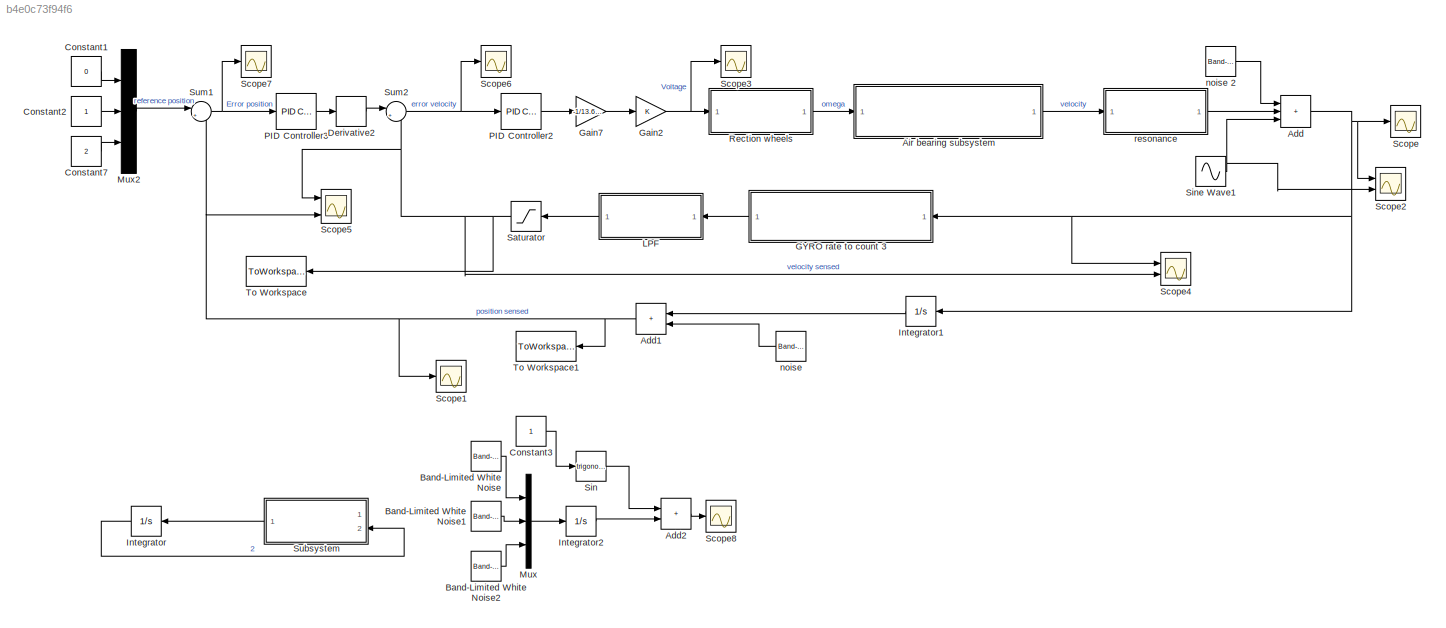
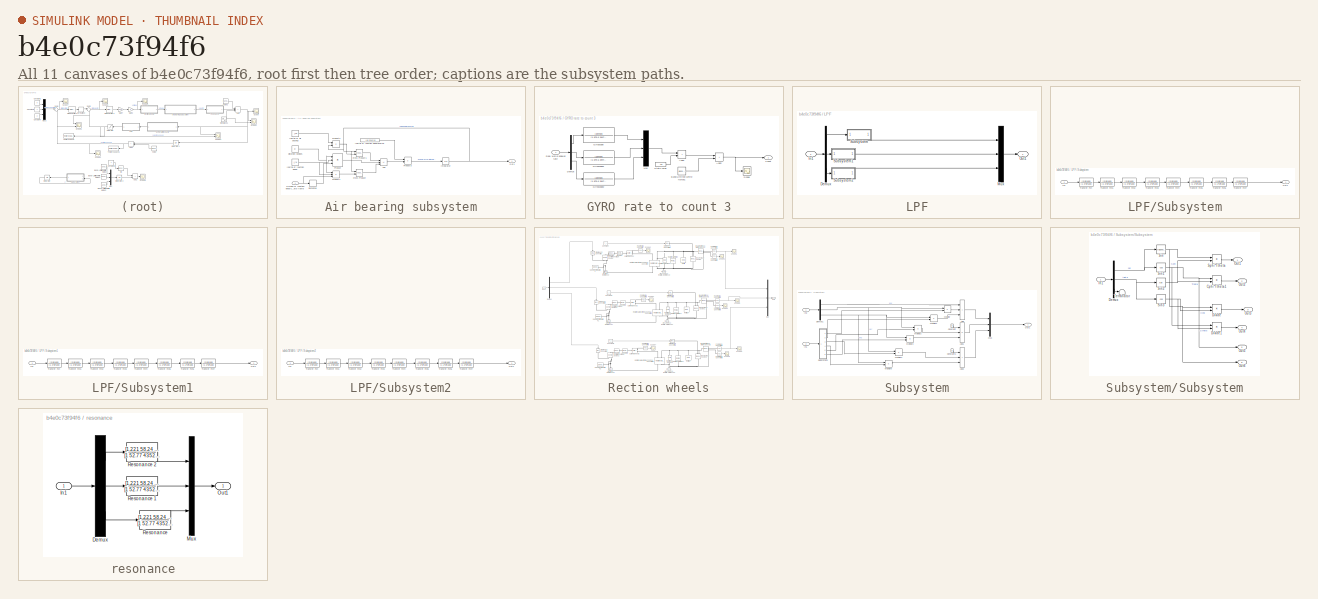
[diagram: thumbnail index - all 11 canvases of the model, root first then tree order]
MODEL slx_b4e0c73f94f6
KIND model
CONFIG AbsTol = 1e-4
CONFIG EnableMultiTasking = off
CONFIG FixedStep = auto
CONFIG MaxStep = auto
CONFIG MinStep = auto
CONFIG RelTol = 1e-4
CONFIG SampleTimeConstraint = Unconstrained
CONFIG SolverName = ode45
CONFIG StartTime = 0.0
CONFIG StopTime = 20
BLOCK [Sum] Add
  IconShape = rectangular
  Inputs = +++
  Ports = [3, 1]
BLOCK [Sum] Add1
  IconShape = rectangular
  Ports = [2, 1]
BLOCK [Sum] Add2
  Commented = on
  IconShape = rectangular
  Ports = [2, 1]
BLOCK [SubSystem] Air bearing subsystem
  Ports = [1, 1]
  RequestExecContextInheritance = off
BLOCK [Sum] Air bearing subsystem/Add
  IconShape = rectangular
  Inputs = ---
  Ports = [3, 1]
BLOCK [Reference] Air bearing subsystem/Cross Product  REF=vrlib/Utilities/Cross Product
  Ports = [2, 1]
  SourceBlock = vrlib/Utilities/Cross Product
  SourceProductBaseCode = SL
  SourceType = Cross Product
BLOCK [Reference] Air bearing subsystem/Cross Product1  REF=vrlib/Utilities/Cross Product
  Ports = [2, 1]
  SourceBlock = vrlib/Utilities/Cross Product
  SourceProductBaseCode = SL
  SourceType = Cross Product
BLOCK [Derivative] Air bearing subsystem/Derivative
BLOCK [Constant] Air bearing subsystem/Direction Cosines 
  Value = D
BLOCK [Constant] Air bearing subsystem/Inertia of air bearing
  Value = I_ab
BLOCK [Constant] Air bearing subsystem/Inertia of reaction wheel
  Value = I_rw
BLOCK [Constant] Air bearing subsystem/Inertia of reaction wheel inverse
  Value = I_ab_inverse
BLOCK [Integrator] Air bearing subsystem/Integrator
  InitialCondition = [0 1 2]
  Ports = [1, 1]
BLOCK [Inport] Air bearing subsystem/Omega of reaction wheel co-ordinate frame
BLOCK [Outport] Air bearing subsystem/Out1
  VectorParamsAs1DForOutWhenUnconnected = off
BLOCK [Product] Air bearing subsystem/Product
  Inputs = 3
  Multiplication = Matrix(*)
  Ports = [3, 1]
BLOCK [Product] Air bearing subsystem/Product1
  Inputs = 3
  Multiplication = Matrix(*)
  Ports = [3, 1]
BLOCK [Product] Air bearing subsystem/Product2
  Multiplication = Matrix(*)
  Ports = [2, 1]
BLOCK [Product] Air bearing subsystem/Product3
  Multiplication = Matrix(*)
  Ports = [2, 1]
BLOCK [Reference] Band-Limited White Noise  REF=simulink/Sources/Band-Limited
White Noise
  Commented = on
  Ports = [0, 1]
  SourceBlock = simulink/Sources/Band-Limited\nWhite Noise
  SourceProductBaseCode = SL
  SourceType = Band-Limited White Noise.
BLOCK [Reference] Band-Limited White Noise1  REF=simulink/Sources/Band-Limited
White Noise
  Commented = on
  Ports = [0, 1]
  SourceBlock = simulink/Sources/Band-Limited\nWhite Noise
  SourceProductBaseCode = SL
  SourceType = Band-Limited White Noise.
BLOCK [Reference] Band-Limited White Noise2  REF=simulink/Sources/Band-Limited
White Noise
  Commented = on
  Ports = [0, 1]
  SourceBlock = simulink/Sources/Band-Limited\nWhite Noise
  SourceProductBaseCode = SL
  SourceType = Band-Limited White Noise.
BLOCK [Constant] Constant1
  Value = 0
BLOCK [Constant] Constant2
BLOCK [Constant] Constant3
  Commented = on
BLOCK [Constant] Constant7
  Value = 2
BLOCK [Derivative] Derivative2
BLOCK [SubSystem] GYRO rate to count 3
  Ports = [1, 1]
  RequestExecContextInheritance = off
BLOCK [Sum] GYRO rate to count 3/Add1
  IconShape = rectangular
  Ports = [2, 1]
BLOCK [Sum] GYRO rate to count 3/Add2
  IconShape = rectangular
  Ports = [2, 1]
BLOCK [Reference] GYRO rate to count 3/Band-Limited White Noise1  REF=simulink/Sources/Band-Limited
White Noise
  Ports = [0, 1]
  SourceBlock = simulink/Sources/Band-Limited\nWhite Noise
  SourceProductBaseCode = SL
  SourceType = Band-Limited White Noise.
BLOCK [Outport] GYRO rate to count 3/Count
  VectorParamsAs1DForOutWhenUnconnected = off
BLOCK [Demux] GYRO rate to count 3/Demux
  Outputs = 3
  Ports = [1, 3]
BLOCK [TransferFcn] GYRO rate to count 3/Gyroscope
  Denominator = [1 879.6 394784]
  Numerator = [394784]
BLOCK [TransferFcn] GYRO rate to count 3/Gyroscope1
  Denominator = [1 879.6 394784]
  Numerator = [394784]
BLOCK [TransferFcn] GYRO rate to count 3/Gyroscope2
  Denominator = [1 879.6 394784]
  Numerator = [394784]
BLOCK [Mux] GYRO rate to count 3/Mux
  DisplayOption = bar
  Inputs = 3
  Ports = [3, 1]
BLOCK [Inport] GYRO rate to count 3/Real world angular rate
BLOCK [Scope] GYRO rate to count 3/Scope
  Floating = off
  NumInputPorts = 1
  Ports = [1]
  ScopeSpecificationString = Simulink.scopes.TimeScopeBlockCfg('CurrentConfiguration', extmgr.ConfigurationSet(extmgr.Configuration('Core','General UI',true),extmgr.Configuration('Core','Source UI',true),extmgr.Configuration('Sources','WiredSimulink',true,'DataLoggingVariableName','ScopeData1'),extmgr.Configuration('Visuals','Time Domain',true,'SerializedDisplays',{struct('MinYLimReal','-156.48118','MaxYLimReal','168.13308','...<+1395ch>
BLOCK [Constant] GYRO rate to count 3/Static bias
  Value = .03
BLOCK [Gain] Gain2
  Gain = K
  Multiplication = Matrix(K*u)
BLOCK [Gain] Gain7
  Gain = -1/13.661
BLOCK [Integrator] Integrator
  Commented = on
  InitialCondition = [1 2 3]
  Ports = [1, 1]
BLOCK [Integrator] Integrator1
  InitialCondition = [1 2 3]
  Ports = [1, 1]
BLOCK [Integrator] Integrator2
  Commented = on
  Ports = [1, 1]
BLOCK [SubSystem] LPF
  Ports = [1, 1]
  RequestExecContextInheritance = off
BLOCK [Demux] LPF/Demux
  Outputs = 3
  Ports = [1, 3]
BLOCK [Inport] LPF/In1
BLOCK [Mux] LPF/Mux
  DisplayOption = bar
  Inputs = 3
  Ports = [3, 1]
BLOCK [Outport] LPF/Out1
  VectorParamsAs1DForOutWhenUnconnected = off
BLOCK [SubSystem] LPF/Subsystem
  Ports = [1, 1]
  RequestExecContextInheritance = off
BLOCK [Inport] LPF/Subsystem/In1
BLOCK [Outport] LPF/Subsystem/Out1
  VectorParamsAs1DForOutWhenUnconnected = off
BLOCK [TransferFcn] LPF/Subsystem/Transfer Fcn
  Denominator = [1 2*pi*100]
  Numerator = [2*pi*100]
BLOCK [TransferFcn] LPF/Subsystem/Transfer Fcn1
  Denominator = [1 2*pi*100]
  Numerator = [2*pi*100]
BLOCK [TransferFcn] LPF/Subsystem/Transfer Fcn2
  Denominator = [1 2*pi*100]
  Numerator = [2*pi*100]
BLOCK [TransferFcn] LPF/Subsystem/Transfer Fcn3
  Denominator = [1 2*pi*100]
  Numerator = [2*pi*100]
BLOCK [TransferFcn] LPF/Subsystem/Transfer Fcn4
  Denominator = [1 2*pi*100]
  Numerator = [2*pi*100]
BLOCK [TransferFcn] LPF/Subsystem/Transfer Fcn5
  Denominator = [1 2*pi*100]
  Numerator = [2*pi*100]
BLOCK [TransferFcn] LPF/Subsystem/Transfer Fcn6
  Denominator = [1 2*pi*100]
  Numerator = [2*pi*100]
BLOCK [TransferFcn] LPF/Subsystem/Transfer Fcn7
  Denominator = [1 2*pi*100]
  Numerator = [2*pi*100]
BLOCK [SubSystem] LPF/Subsystem1
  Ports = [1, 1]
  RequestExecContextInheritance = off
BLOCK [Inport] LPF/Subsystem1/In1
BLOCK [Outport] LPF/Subsystem1/Out1
  VectorParamsAs1DForOutWhenUnconnected = off
BLOCK [TransferFcn] LPF/Subsystem1/Transfer Fcn
  Denominator = [1 2*pi*100]
  Numerator = [2*pi*100]
BLOCK [TransferFcn] LPF/Subsystem1/Transfer Fcn1
  Denominator = [1 2*pi*100]
  Numerator = [2*pi*100]
BLOCK [TransferFcn] LPF/Subsystem1/Transfer Fcn2
  Denominator = [1 2*pi*100]
  Numerator = [2*pi*100]
BLOCK [TransferFcn] LPF/Subsystem1/Transfer Fcn3
  Denominator = [1 2*pi*100]
  Numerator = [2*pi*100]
BLOCK [TransferFcn] LPF/Subsystem1/Transfer Fcn4
  Denominator = [1 2*pi*100]
  Numerator = [2*pi*100]
BLOCK [TransferFcn] LPF/Subsystem1/Transfer Fcn5
  Denominator = [1 2*pi*100]
  Numerator = [2*pi*100]
BLOCK [TransferFcn] LPF/Subsystem1/Transfer Fcn6
  Denominator = [1 2*pi*100]
  Numerator = [2*pi*100]
BLOCK [TransferFcn] LPF/Subsystem1/Transfer Fcn7
  Denominator = [1 2*pi*100]
  Numerator = [2*pi*100]
BLOCK [SubSystem] LPF/Subsystem2
  Ports = [1, 1]
  RequestExecContextInheritance = off
BLOCK [Inport] LPF/Subsystem2/In1
BLOCK [Outport] LPF/Subsystem2/Out1
  VectorParamsAs1DForOutWhenUnconnected = off
BLOCK [TransferFcn] LPF/Subsystem2/Transfer Fcn
  Denominator = [1 2*pi*100]
  Numerator = [2*pi*100]
BLOCK [TransferFcn] LPF/Subsystem2/Transfer Fcn1
  Denominator = [1 2*pi*100]
  Numerator = [2*pi*100]
BLOCK [TransferFcn] LPF/Subsystem2/Transfer Fcn2
  Denominator = [1 2*pi*100]
  Numerator = [2*pi*100]
BLOCK [TransferFcn] LPF/Subsystem2/Transfer Fcn3
  Denominator = [1 2*pi*100]
  Numerator = [2*pi*100]
BLOCK [TransferFcn] LPF/Subsystem2/Transfer Fcn4
  Denominator = [1 2*pi*100]
  Numerator = [2*pi*100]
BLOCK [TransferFcn] LPF/Subsystem2/Transfer Fcn5
  Denominator = [1 2*pi*100]
  Numerator = [2*pi*100]
BLOCK [TransferFcn] LPF/Subsystem2/Transfer Fcn6
  Denominator = [1 2*pi*100]
  Numerator = [2*pi*100]
BLOCK [TransferFcn] LPF/Subsystem2/Transfer Fcn7
  Denominator = [1 2*pi*100]
  Numerator = [2*pi*100]
BLOCK [Mux] Mux
  Commented = on
  DisplayOption = bar
  Inputs = 3
  Ports = [3, 1]
BLOCK [Mux] Mux2
  DisplayOption = bar
  Inputs = 3
  Ports = [3, 1]
BLOCK [Reference] PID Controller2  REF=pid_lib/PID Controller
  Ports = [1, 1]
  SourceBlock = pid_lib/PID Controller
  SourceProductBaseCode = SL
  SourceType = PID 1dof
BLOCK [Reference] PID Controller3  REF=pid_lib/PID Controller
  Ports = [1, 1]
  SourceBlock = pid_lib/PID Controller
  SourceProductBaseCode = SL
  SourceType = PID 1dof
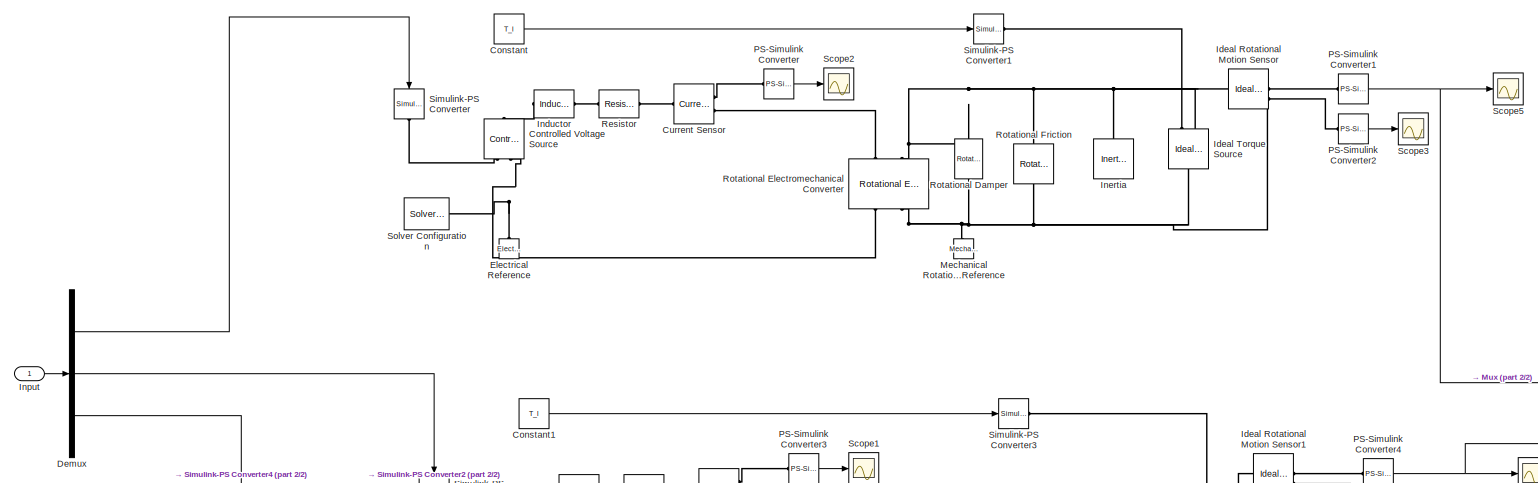
[diagram: Rection wheels - part 1/2, full width, top band]
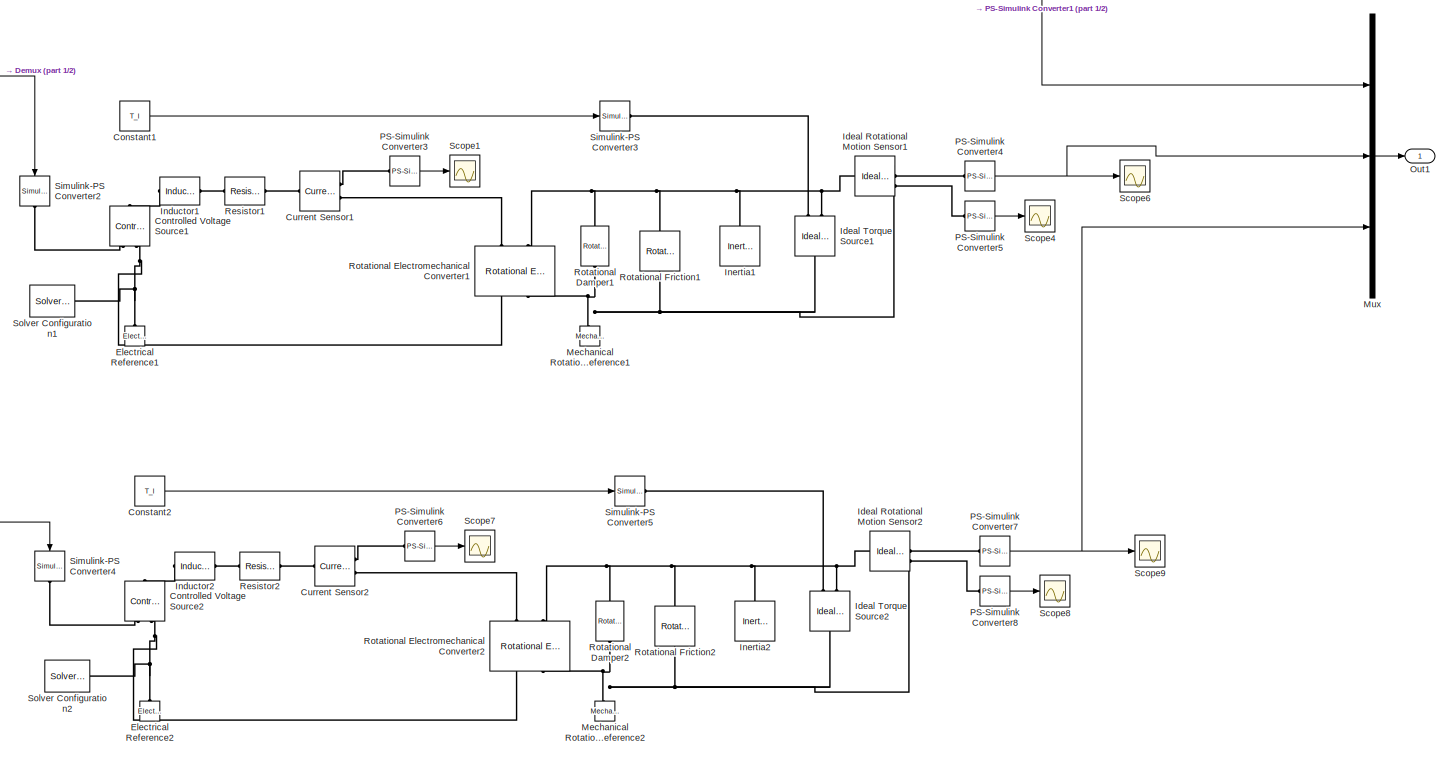
[diagram: Rection wheels - part 2/2, full width, middle band]
BLOCK [SubSystem] Rection wheels
  Ports = [1, 1]
  RequestExecContextInheritance = off
BLOCK [Constant] Rection wheels/Constant
  Value = T_l
BLOCK [Constant] Rection wheels/Constant1
  Value = T_l
BLOCK [Constant] Rection wheels/Constant2
  Value = T_l
BLOCK [Reference] Rection wheels/Controlled Voltage Source  REF=fl_lib/Electrical/Electrical Sources/Controlled Voltage
Source
  NameLocation = right
  Ports = [0, 0, 0, 0, 0, 1, 2]
  SourceBlock = fl_lib/Electrical/Electrical Sources/Controlled Voltage\nSource
  SourceProductBaseCode = SS
  SourceType = Controlled Voltage\nSource
BLOCK [Reference] Rection wheels/Controlled Voltage Source1  REF=fl_lib/Electrical/Electrical Sources/Controlled Voltage
Source
  NameLocation = right
  Ports = [0, 0, 0, 0, 0, 1, 2]
  SourceBlock = fl_lib/Electrical/Electrical Sources/Controlled Voltage\nSource
  SourceProductBaseCode = SS
  SourceType = Controlled Voltage\nSource
BLOCK [Reference] Rection wheels/Controlled Voltage Source2  REF=fl_lib/Electrical/Electrical Sources/Controlled Voltage
Source
  NameLocation = right
  Ports = [0, 0, 0, 0, 0, 1, 2]
  SourceBlock = fl_lib/Electrical/Electrical Sources/Controlled Voltage\nSource
  SourceProductBaseCode = SS
  SourceType = Controlled Voltage\nSource
BLOCK [Reference] Rection wheels/Current Sensor  REF=fl_lib/Electrical/Electrical Sensors/Current Sensor
  Ports = [0, 0, 0, 0, 0, 1, 2]
  SourceBlock = fl_lib/Electrical/Electrical Sensors/Current Sensor
  SourceProductBaseCode = SS
  SourceType = Current Sensor
BLOCK [Reference] Rection wheels/Current Sensor1  REF=fl_lib/Electrical/Electrical Sensors/Current Sensor
  Ports = [0, 0, 0, 0, 0, 1, 2]
  SourceBlock = fl_lib/Electrical/Electrical Sensors/Current Sensor
  SourceProductBaseCode = SS
  SourceType = Current Sensor
BLOCK [Reference] Rection wheels/Current Sensor2  REF=fl_lib/Electrical/Electrical Sensors/Current Sensor
  Ports = [0, 0, 0, 0, 0, 1, 2]
  SourceBlock = fl_lib/Electrical/Electrical Sensors/Current Sensor
  SourceProductBaseCode = SS
  SourceType = Current Sensor
BLOCK [Demux] Rection wheels/Demux
  Outputs = 3
  Ports = [1, 3]
BLOCK [Reference] Rection wheels/Electrical Reference  REF=fl_lib/Electrical/Electrical Elements/Electrical Reference
  NameLocation = right
  Ports = [0, 0, 0, 0, 0, 1]
  SourceBlock = fl_lib/Electrical/Electrical Elements/Electrical Reference
  SourceProductBaseCode = SS
  SourceType = Electrical Reference
BLOCK [Reference] Rection wheels/Electrical Reference1  REF=fl_lib/Electrical/Electrical Elements/Electrical Reference
  NameLocation = right
  Ports = [0, 0, 0, 0, 0, 1]
  SourceBlock = fl_lib/Electrical/Electrical Elements/Electrical Reference
  SourceProductBaseCode = SS
  SourceType = Electrical Reference
BLOCK [Reference] Rection wheels/Electrical Reference2  REF=fl_lib/Electrical/Electrical Elements/Electrical Reference
  NameLocation = right
  Ports = [0, 0, 0, 0, 0, 1]
  SourceBlock = fl_lib/Electrical/Electrical Elements/Electrical Reference
  SourceProductBaseCode = SS
  SourceType = Electrical Reference
BLOCK [Reference] Rection wheels/Ideal Rotational Motion Sensor  REF=fl_lib/Mechanical/Mechanical Sensors/Ideal Rotational
Motion Sensor
  Ports = [0, 0, 0, 0, 0, 1, 3]
  SourceBlock = fl_lib/Mechanical/Mechanical Sensors/Ideal Rotational\nMotion Sensor
  SourceProductBaseCode = SS
  SourceType = Ideal Rotational\nMotion Sensor
BLOCK [Reference] Rection wheels/Ideal Rotational Motion Sensor1  REF=fl_lib/Mechanical/Mechanical Sensors/Ideal Rotational
Motion Sensor
  Ports = [0, 0, 0, 0, 0, 1, 3]
  SourceBlock = fl_lib/Mechanical/Mechanical Sensors/Ideal Rotational\nMotion Sensor
  SourceProductBaseCode = SS
  SourceType = Ideal Rotational\nMotion Sensor
BLOCK [Reference] Rection wheels/Ideal Rotational Motion Sensor2  REF=fl_lib/Mechanical/Mechanical Sensors/Ideal Rotational
Motion Sensor
  Ports = [0, 0, 0, 0, 0, 1, 3]
  SourceBlock = fl_lib/Mechanical/Mechanical Sensors/Ideal Rotational\nMotion Sensor
  SourceProductBaseCode = SS
  SourceType = Ideal Rotational\nMotion Sensor
BLOCK [Reference] Rection wheels/Ideal Torque Source  REF=fl_lib/Mechanical/Mechanical Sources/Ideal Torque Source
  NameLocation = left
  Ports = [0, 0, 0, 0, 0, 1, 2]
  SourceBlock = fl_lib/Mechanical/Mechanical Sources/Ideal Torque Source
  SourceProductBaseCode = SS
  SourceType = Ideal Torque Source
BLOCK [Reference] Rection wheels/Ideal Torque Source1  REF=fl_lib/Mechanical/Mechanical Sources/Ideal Torque Source
  NameLocation = left
  Ports = [0, 0, 0, 0, 0, 1, 2]
  SourceBlock = fl_lib/Mechanical/Mechanical Sources/Ideal Torque Source
  SourceProductBaseCode = SS
  SourceType = Ideal Torque Source
BLOCK [Reference] Rection wheels/Ideal Torque Source2  REF=fl_lib/Mechanical/Mechanical Sources/Ideal Torque Source
  NameLocation = left
  Ports = [0, 0, 0, 0, 0, 1, 2]
  SourceBlock = fl_lib/Mechanical/Mechanical Sources/Ideal Torque Source
  SourceProductBaseCode = SS
  SourceType = Ideal Torque Source
BLOCK [Reference] Rection wheels/Inductor  REF=ee_lib/Passive/Inductor
  Ports = [0, 0, 0, 0, 0, 1, 1]
  SourceBlock = ee_lib/Passive/Inductor
  SourceProductBaseCode = PS
  SourceType = Inductor
BLOCK [Reference] Rection wheels/Inductor1  REF=ee_lib/Passive/Inductor
  Ports = [0, 0, 0, 0, 0, 1, 1]
  SourceBlock = ee_lib/Passive/Inductor
  SourceProductBaseCode = PS
  SourceType = Inductor
BLOCK [Reference] Rection wheels/Inductor2  REF=ee_lib/Passive/Inductor
  Ports = [0, 0, 0, 0, 0, 1, 1]
  SourceBlock = ee_lib/Passive/Inductor
  SourceProductBaseCode = PS
  SourceType = Inductor
BLOCK [Reference] Rection wheels/Inertia  REF=fl_lib/Mechanical/Rotational Elements/Inertia
  NameLocation = right
  Ports = [0, 0, 0, 0, 0, 1]
  SourceBlock = fl_lib/Mechanical/Rotational Elements/Inertia
  SourceProductBaseCode = SS
  SourceType = Inertia
BLOCK [Reference] Rection wheels/Inertia1  REF=fl_lib/Mechanical/Rotational Elements/Inertia
  NameLocation = right
  Ports = [0, 0, 0, 0, 0, 1]
  SourceBlock = fl_lib/Mechanical/Rotational Elements/Inertia
  SourceProductBaseCode = SS
  SourceType = Inertia
BLOCK [Reference] Rection wheels/Inertia2  REF=fl_lib/Mechanical/Rotational Elements/Inertia
  NameLocation = right
  Ports = [0, 0, 0, 0, 0, 1]
  SourceBlock = fl_lib/Mechanical/Rotational Elements/Inertia
  SourceProductBaseCode = SS
  SourceType = Inertia
BLOCK [Inport] Rection wheels/Input
BLOCK [Reference] Rection wheels/Mechanical Rotational Reference  REF=fl_lib/Mechanical/Rotational Elements/Mechanical
Rotational Reference
  NameLocation = right
  Ports = [0, 0, 0, 0, 0, 1]
  SourceBlock = fl_lib/Mechanical/Rotational Elements/Mechanical\nRotational Reference
  SourceProductBaseCode = SS
  SourceType = Mechanical\nRotational Reference
BLOCK [Reference] Rection wheels/Mechanical Rotational Reference1  REF=fl_lib/Mechanical/Rotational Elements/Mechanical
Rotational Reference
  NameLocation = right
  Ports = [0, 0, 0, 0, 0, 1]
  SourceBlock = fl_lib/Mechanical/Rotational Elements/Mechanical\nRotational Reference
  SourceProductBaseCode = SS
  SourceType = Mechanical\nRotational Reference
BLOCK [Reference] Rection wheels/Mechanical Rotational Reference2  REF=fl_lib/Mechanical/Rotational Elements/Mechanical
Rotational Reference
  NameLocation = right
  Ports = [0, 0, 0, 0, 0, 1]
  SourceBlock = fl_lib/Mechanical/Rotational Elements/Mechanical\nRotational Reference
  SourceProductBaseCode = SS
  SourceType = Mechanical\nRotational Reference
BLOCK [Mux] Rection wheels/Mux
  DisplayOption = bar
  Inputs = 3
  Ports = [3, 1]
BLOCK [Outport] Rection wheels/Out1
  VectorParamsAs1DForOutWhenUnconnected = off
BLOCK [Reference] Rection wheels/PS-Simulink Converter  REF=nesl_utility/PS-Simulink
Converter
  Ports = [0, 1, 0, 0, 0, 1]
  SourceBlock = nesl_utility/PS-Simulink\nConverter
  SourceProductBaseCode = SS
  SourceType = PS-Simulink\nConverter
BLOCK [Reference] Rection wheels/PS-Simulink Converter1  REF=nesl_utility/PS-Simulink
Converter
  Ports = [0, 1, 0, 0, 0, 1]
  SourceBlock = nesl_utility/PS-Simulink\nConverter
  SourceProductBaseCode = SS
  SourceType = PS-Simulink\nConverter
BLOCK [Reference] Rection wheels/PS-Simulink Converter2  REF=nesl_utility/PS-Simulink
Converter
  Ports = [0, 1, 0, 0, 0, 1]
  SourceBlock = nesl_utility/PS-Simulink\nConverter
  SourceProductBaseCode = SS
  SourceType = PS-Simulink\nConverter
BLOCK [Reference] Rection wheels/PS-Simulink Converter3  REF=nesl_utility/PS-Simulink
Converter
  Ports = [0, 1, 0, 0, 0, 1]
  SourceBlock = nesl_utility/PS-Simulink\nConverter
  SourceProductBaseCode = SS
  SourceType = PS-Simulink\nConverter
BLOCK [Reference] Rection wheels/PS-Simulink Converter4  REF=nesl_utility/PS-Simulink
Converter
  Ports = [0, 1, 0, 0, 0, 1]
  SourceBlock = nesl_utility/PS-Simulink\nConverter
  SourceProductBaseCode = SS
  SourceType = PS-Simulink\nConverter
BLOCK [Reference] Rection wheels/PS-Simulink Converter5  REF=nesl_utility/PS-Simulink
Converter
  Ports = [0, 1, 0, 0, 0, 1]
  SourceBlock = nesl_utility/PS-Simulink\nConverter
  SourceProductBaseCode = SS
  SourceType = PS-Simulink\nConverter
BLOCK [Reference] Rection wheels/PS-Simulink Converter6  REF=nesl_utility/PS-Simulink
Converter
  Ports = [0, 1, 0, 0, 0, 1]
  SourceBlock = nesl_utility/PS-Simulink\nConverter
  SourceProductBaseCode = SS
  SourceType = PS-Simulink\nConverter
BLOCK [Reference] Rection wheels/PS-Simulink Converter7  REF=nesl_utility/PS-Simulink
Converter
  Ports = [0, 1, 0, 0, 0, 1]
  SourceBlock = nesl_utility/PS-Simulink\nConverter
  SourceProductBaseCode = SS
  SourceType = PS-Simulink\nConverter
BLOCK [Reference] Rection wheels/PS-Simulink Converter8  REF=nesl_utility/PS-Simulink
Converter
  Ports = [0, 1, 0, 0, 0, 1]
  SourceBlock = nesl_utility/PS-Simulink\nConverter
  SourceProductBaseCode = SS
  SourceType = PS-Simulink\nConverter
BLOCK [Reference] Rection wheels/Resistor  REF=ee_lib/Passive/Resistor
  Ports = [0, 0, 0, 0, 0, 1, 1]
  SourceBlock = ee_lib/Passive/Resistor
  SourceProductBaseCode = PS
  SourceType = Resistor
BLOCK [Reference] Rection wheels/Resistor1  REF=ee_lib/Passive/Resistor
  Ports = [0, 0, 0, 0, 0, 1, 1]
  SourceBlock = ee_lib/Passive/Resistor
  SourceProductBaseCode = PS
  SourceType = Resistor
BLOCK [Reference] Rection wheels/Resistor2  REF=ee_lib/Passive/Resistor
  Ports = [0, 0, 0, 0, 0, 1, 1]
  SourceBlock = ee_lib/Passive/Resistor
  SourceProductBaseCode = PS
  SourceType = Resistor
BLOCK [Reference] Rection wheels/Rotational Damper  REF=fl_lib/Mechanical/Rotational Elements/Rotational Damper
  NameLocation = left
  Ports = [0, 0, 0, 0, 0, 1, 1]
  SourceBlock = fl_lib/Mechanical/Rotational Elements/Rotational Damper
  SourceProductBaseCode = SS
  SourceType = Rotational Damper
BLOCK [Reference] Rection wheels/Rotational Damper1  REF=fl_lib/Mechanical/Rotational Elements/Rotational Damper
  NameLocation = left
  Ports = [0, 0, 0, 0, 0, 1, 1]
  SourceBlock = fl_lib/Mechanical/Rotational Elements/Rotational Damper
  SourceProductBaseCode = SS
  SourceType = Rotational Damper
BLOCK [Reference] Rection wheels/Rotational Damper2  REF=fl_lib/Mechanical/Rotational Elements/Rotational Damper
  NameLocation = left
  Ports = [0, 0, 0, 0, 0, 1, 1]
  SourceBlock = fl_lib/Mechanical/Rotational Elements/Rotational Damper
  SourceProductBaseCode = SS
  SourceType = Rotational Damper
BLOCK [Reference] Rection wheels/Rotational Electromechanical Converter  REF=fl_lib/Electrical/Electrical Elements/Rotational
Electromechanical
Converter
  NameLocation = right
  Ports = [0, 0, 0, 0, 0, 2, 2]
  SourceBlock = fl_lib/Electrical/Electrical Elements/Rotational\nElectromechanical\nConverter
  SourceProductBaseCode = SS
  SourceType = Rotational\nElectromechanical\nConverter
BLOCK [Reference] Rection wheels/Rotational Electromechanical Converter1  REF=fl_lib/Electrical/Electrical Elements/Rotational
Electromechanical
Converter
  NameLocation = right
  Ports = [0, 0, 0, 0, 0, 2, 2]
  SourceBlock = fl_lib/Electrical/Electrical Elements/Rotational\nElectromechanical\nConverter
  SourceProductBaseCode = SS
  SourceType = Rotational\nElectromechanical\nConverter
BLOCK [Reference] Rection wheels/Rotational Electromechanical Converter2  REF=fl_lib/Electrical/Electrical Elements/Rotational
Electromechanical
Converter
  NameLocation = right
  Ports = [0, 0, 0, 0, 0, 2, 2]
  SourceBlock = fl_lib/Electrical/Electrical Elements/Rotational\nElectromechanical\nConverter
  SourceProductBaseCode = SS
  SourceType = Rotational\nElectromechanical\nConverter
BLOCK [Reference] Rection wheels/Rotational Friction  REF=fl_lib/Mechanical/Rotational Elements/Rotational Friction
  Commented = on
  NameLocation = left
  Ports = [0, 0, 0, 0, 0, 1, 1]
  SourceBlock = fl_lib/Mechanical/Rotational Elements/Rotational Friction
  SourceProductBaseCode = SS
  SourceType = Rotational Friction
BLOCK [Reference] Rection wheels/Rotational Friction1  REF=fl_lib/Mechanical/Rotational Elements/Rotational Friction
  Commented = on
  NameLocation = left
  Ports = [0, 0, 0, 0, 0, 1, 1]
  SourceBlock = fl_lib/Mechanical/Rotational Elements/Rotational Friction
  SourceProductBaseCode = SS
  SourceType = Rotational Friction
BLOCK [Reference] Rection wheels/Rotational Friction2  REF=fl_lib/Mechanical/Rotational Elements/Rotational Friction
  Commented = on
  NameLocation = left
  Ports = [0, 0, 0, 0, 0, 1, 1]
  SourceBlock = fl_lib/Mechanical/Rotational Elements/Rotational Friction
  SourceProductBaseCode = SS
  SourceType = Rotational Friction
BLOCK [Scope] Rection wheels/Scope1
  Floating = off
  NumInputPorts = 1
  Ports = [1]
  ScopeSpecificationString = Simulink.scopes.TimeScopeBlockCfg('CurrentConfiguration', extmgr.ConfigurationSet(extmgr.Configuration('Core','General UI',true),extmgr.Configuration('Core','Source UI',true),extmgr.Configuration('Sources','WiredSimulink',true,'DataLoggingVariableName','ScopeData3'),extmgr.Configuration('Visuals','Time Domain',true,'SerializedDisplays',{struct('MinYLimReal','-0.01701','MaxYLimReal','0.15307','YLab...<+1380ch>
BLOCK [Scope] Rection wheels/Scope2
  Floating = off
  NumInputPorts = 1
  Ports = [1]
  ScopeSpecificationString = Simulink.scopes.TimeScopeBlockCfg('CurrentConfiguration', extmgr.ConfigurationSet(extmgr.Configuration('Core','General UI',true),extmgr.Configuration('Core','Source UI',true),extmgr.Configuration('Sources','WiredSimulink',true,'DataLoggingVariableName','ScopeData1'),extmgr.Configuration('Visuals','Time Domain',true,'SerializedDisplays',{struct('MinYLimReal','-0.01701','MaxYLimReal','0.15307','YLab...<+1380ch>
BLOCK [Scope] Rection wheels/Scope3
  Floating = off
  NumInputPorts = 1
  Ports = [1]
  ScopeSpecificationString = Simulink.scopes.TimeScopeBlockCfg('CurrentConfiguration', extmgr.ConfigurationSet(extmgr.Configuration('Core','General UI',true),extmgr.Configuration('Core','Source UI',true),extmgr.Configuration('Sources','WiredSimulink',true,'DataLoggingVariableName','ScopeData2'),extmgr.Configuration('Visuals','Time Domain',true,'SerializedDisplays',{struct('MinYLimReal','-238.85785','MaxYLimReal','26.53976','Y...<+1393ch>
BLOCK [Scope] Rection wheels/Scope4
  Floating = off
  NumInputPorts = 1
  Ports = [1]
  ScopeSpecificationString = Simulink.scopes.TimeScopeBlockCfg('CurrentConfiguration', extmgr.ConfigurationSet(extmgr.Configuration('Core','General UI',true),extmgr.Configuration('Core','Source UI',true),extmgr.Configuration('Sources','WiredSimulink',true,'DataLoggingVariableName','ScopeData4'),extmgr.Configuration('Visuals','Time Domain',true,'SerializedDisplays',{struct('MinYLimReal','-854.11386','MaxYLimReal','7687.02476',...<+1439ch>
BLOCK [Scope] Rection wheels/Scope5
  Floating = off
  NumInputPorts = 1
  Ports = [1]
  ScopeSpecificationString = Simulink.scopes.TimeScopeBlockCfg('CurrentConfiguration', extmgr.ConfigurationSet(extmgr.Configuration('Core','General UI',true),extmgr.Configuration('Core','Source UI',true),extmgr.Configuration('Sources','WiredSimulink',true,'DataLoggingVariableName','ScopeData3'),extmgr.Configuration('Visuals','Time Domain',true,'SerializedDisplays',{struct('MinYLimReal','13.34911','MaxYLimReal','13.39302','YLa...<+1406ch>
BLOCK [Scope] Rection wheels/Scope6
  Floating = off
  NumInputPorts = 1
  Ports = [1]
  ScopeSpecificationString = Simulink.scopes.TimeScopeBlockCfg('CurrentConfiguration', extmgr.ConfigurationSet(extmgr.Configuration('Core','General UI',true),extmgr.Configuration('Core','Source UI',true),extmgr.Configuration('Sources','WiredSimulink',true,'DataLoggingVariableName','ScopeData5'),extmgr.Configuration('Visuals','Time Domain',true,'SerializedDisplays',{struct('MinYLimReal','-136.37752','MaxYLimReal','1227.39772',...<+1483ch>
BLOCK [Scope] Rection wheels/Scope7
  Floating = off
  NumInputPorts = 1
  Ports = [1]
  ScopeSpecificationString = Simulink.scopes.TimeScopeBlockCfg('CurrentConfiguration', extmgr.ConfigurationSet(extmgr.Configuration('Core','General UI',true),extmgr.Configuration('Core','Source UI',true),extmgr.Configuration('Sources','WiredSimulink',true,'DataLoggingVariableName','ScopeData6'),extmgr.Configuration('Visuals','Time Domain',true,'SerializedDisplays',{struct('MinYLimReal','-0.01701','MaxYLimReal','0.15307','YLab...<+1380ch>
BLOCK [Scope] Rection wheels/Scope8
  Floating = off
  NumInputPorts = 1
  Ports = [1]
  ScopeSpecificationString = Simulink.scopes.TimeScopeBlockCfg('CurrentConfiguration', extmgr.ConfigurationSet(extmgr.Configuration('Core','General UI',true),extmgr.Configuration('Core','Source UI',true),extmgr.Configuration('Sources','WiredSimulink',true,'DataLoggingVariableName','ScopeData7'),extmgr.Configuration('Visuals','Time Domain',true,'SerializedDisplays',{struct('MinYLimReal','-838.51584','MaxYLimReal','93.16843','Y...<+1393ch>
BLOCK [Scope] Rection wheels/Scope9
  Floating = off
  NumInputPorts = 1
  Ports = [1]
  ScopeSpecificationString = Simulink.scopes.TimeScopeBlockCfg('CurrentConfiguration', extmgr.ConfigurationSet(extmgr.Configuration('Core','General UI',true),extmgr.Configuration('Core','Source UI',true),extmgr.Configuration('Sources','WiredSimulink',true,'DataLoggingVariableName','ScopeData8'),extmgr.Configuration('Visuals','Time Domain',true,'SerializedDisplays',{struct('MinYLimReal','-213.98381','MaxYLimReal','23.77598','Y...<+1393ch>
BLOCK [Reference] Rection wheels/Simulink-PS Converter  REF=nesl_utility/Simulink-PS
Converter
  NameLocation = left
  Ports = [1, 0, 0, 0, 0, 0, 1]
  SourceBlock = nesl_utility/Simulink-PS\nConverter
  SourceProductBaseCode = SS
  SourceType = Simulink-PS\nConverter
BLOCK [Reference] Rection wheels/Simulink-PS Converter1  REF=nesl_utility/Simulink-PS
Converter
  Ports = [1, 0, 0, 0, 0, 0, 1]
  SourceBlock = nesl_utility/Simulink-PS\nConverter
  SourceProductBaseCode = SS
  SourceType = Simulink-PS\nConverter
BLOCK [Reference] Rection wheels/Simulink-PS Converter2  REF=nesl_utility/Simulink-PS
Converter
  NameLocation = left
  Ports = [1, 0, 0, 0, 0, 0, 1]
  SourceBlock = nesl_utility/Simulink-PS\nConverter
  SourceProductBaseCode = SS
  SourceType = Simulink-PS\nConverter
BLOCK [Reference] Rection wheels/Simulink-PS Converter3  REF=nesl_utility/Simulink-PS
Converter
  Ports = [1, 0, 0, 0, 0, 0, 1]
  SourceBlock = nesl_utility/Simulink-PS\nConverter
  SourceProductBaseCode = SS
  SourceType = Simulink-PS\nConverter
BLOCK [Reference] Rection wheels/Simulink-PS Converter4  REF=nesl_utility/Simulink-PS
Converter
  NameLocation = left
  Ports = [1, 0, 0, 0, 0, 0, 1]
  SourceBlock = nesl_utility/Simulink-PS\nConverter
  SourceProductBaseCode = SS
  SourceType = Simulink-PS\nConverter
BLOCK [Reference] Rection wheels/Simulink-PS Converter5  REF=nesl_utility/Simulink-PS
Converter
  Ports = [1, 0, 0, 0, 0, 0, 1]
  SourceBlock = nesl_utility/Simulink-PS\nConverter
  SourceProductBaseCode = SS
  SourceType = Simulink-PS\nConverter
BLOCK [Reference] Rection wheels/Solver Configuration  REF=nesl_utility/Solver
Configuration
  Ports = [0, 0, 0, 0, 0, 0, 1]
  SourceBlock = nesl_utility/Solver\nConfiguration
  SourceProductBaseCode = SS
  SourceType = Solver\nConfiguration
BLOCK [Reference] Rection wheels/Solver Configuration1  REF=nesl_utility/Solver
Configuration
  Ports = [0, 0, 0, 0, 0, 0, 1]
  SourceBlock = nesl_utility/Solver\nConfiguration
  SourceProductBaseCode = SS
  SourceType = Solver\nConfiguration
BLOCK [Reference] Rection wheels/Solver Configuration2  REF=nesl_utility/Solver
Configuration
  Ports = [0, 0, 0, 0, 0, 0, 1]
  SourceBlock = nesl_utility/Solver\nConfiguration
  SourceProductBaseCode = SS
  SourceType = Solver\nConfiguration
BLOCK [Saturate] Saturator
  LowerLimit = -2^15
  UpperLimit = 2^15
BLOCK [Scope] Scope
  Floating = off
  NumInputPorts = 1
  Ports = [1]
  ScopeSpecificationString = Simulink.scopes.TimeScopeBlockCfg('CurrentConfiguration', extmgr.ConfigurationSet(extmgr.Configuration('Core','General UI',true),extmgr.Configuration('Core','Source UI',true),extmgr.Configuration('Sources','WiredSimulink',true,'DataLoggingVariableName','ScopeData1'),extmgr.Configuration('Visuals','Time Domain',true,'SerializedDisplays',{struct('MinYLimReal','-1.54172','MaxYLimReal','2.89716','YLab...<+1529ch>
BLOCK [Scope] Scope1
  Floating = off
  NumInputPorts = 1
  Ports = [1]
  ScopeSpecificationString = Simulink.scopes.TimeScopeBlockCfg('CurrentConfiguration', extmgr.ConfigurationSet(extmgr.Configuration('Core','General UI',true),extmgr.Configuration('Core','Source UI',true),extmgr.Configuration('Sources','WiredSimulink',true,'DataLoggingVariableName','ScopeData1'),extmgr.Configuration('Visuals','Time Domain',true,'SerializedDisplays',{struct('MinYLimReal','-1.38057','MaxYLimReal','3.84705','YLab...<+1529ch>
BLOCK [Scope] Scope2
  Floating = off
  NumInputPorts = 2
  Ports = [2]
  ScopeSpecificationString = Simulink.scopes.TimeScopeBlockCfg('CurrentConfiguration', extmgr.ConfigurationSet(extmgr.Configuration('Core','General UI',true),extmgr.Configuration('Core','Source UI',true),extmgr.Configuration('Sources','WiredSimulink',true,'DataLoggingVariableName','ScopeData1'),extmgr.Configuration('Visuals','Time Domain',true,'SerializedDisplays',{struct('MinYLimReal','-6.41314','MaxYLimReal','5.66024','YLab...<+1566ch>
BLOCK [Scope] Scope3
  Floating = off
  NumInputPorts = 1
  Ports = [1]
  ScopeSpecificationString = Simulink.scopes.TimeScopeBlockCfg('CurrentConfiguration', extmgr.ConfigurationSet(extmgr.Configuration('Core','General UI',true),extmgr.Configuration('Core','Source UI',true),extmgr.Configuration('Sources','WiredSimulink',true,'DataLoggingVariableName','ScopeData2'),extmgr.Configuration('Visuals','Time Domain',true,'SerializedDisplays',{struct('MinYLimReal','-7579.76103','MaxYLimReal','9261.21194'...<+1532ch>
BLOCK [Scope] Scope4
  Floating = off
  NumInputPorts = 2
  Ports = [2]
  ScopeSpecificationString = Simulink.scopes.TimeScopeBlockCfg('CurrentConfiguration', extmgr.ConfigurationSet(extmgr.Configuration('Core','General UI',true),extmgr.Configuration('Core','Source UI',true),extmgr.Configuration('Sources','WiredSimulink',true,'DataLoggingVariableName','ScopeData3'),extmgr.Configuration('Visuals','Time Domain',true,'SerializedDisplays',{struct('MinYLimReal','-3.81866','MaxYLimReal','3.15016','YLab...<+1661ch>
BLOCK [Scope] Scope5
  Floating = off
  NumInputPorts = 3
  Ports = [3]
  ScopeSpecificationString = Simulink.scopes.TimeScopeBlockCfg('CurrentConfiguration', extmgr.ConfigurationSet(extmgr.Configuration('Core','General UI',true),extmgr.Configuration('Core','Source UI',true),extmgr.Configuration('Sources','WiredSimulink',true,'DataLoggingVariableName','ScopeData4'),extmgr.Configuration('Visuals','Time Domain',true,'SerializedDisplays',{struct('MinYLimReal','-2.20933','MaxYLimReal','4.12976','YLab...<+1643ch>
BLOCK [Scope] Scope6
  Floating = off
  NumInputPorts = 1
  Ports = [1]
  ScopeSpecificationString = Simulink.scopes.TimeScopeBlockCfg('CurrentConfiguration', extmgr.ConfigurationSet(extmgr.Configuration('Core','General UI',true),extmgr.Configuration('Core','Source UI',true),extmgr.Configuration('Sources','WiredSimulink',true,'DataLoggingVariableName','ScopeData5'),extmgr.Configuration('Visuals','Time Domain',true,'SerializedDisplays',{struct('MinYLimReal','-388.53031','MaxYLimReal','337.24678','...<+1524ch>
BLOCK [Scope] Scope7
  Floating = off
  NumInputPorts = 1
  Ports = [1]
  ScopeSpecificationString = Simulink.scopes.TimeScopeBlockCfg('CurrentConfiguration', extmgr.ConfigurationSet(extmgr.Configuration('Core','General UI',true,'FigureColor',[1 1 1]),extmgr.Configuration('Core','Source UI',true),extmgr.Configuration('Sources','WiredSimulink',true,'DataLoggingVariableName','ScopeData1'),extmgr.Configuration('Visuals','Time Domain',true,'SerializedDisplays',{struct('MinYLimReal','-1.74863','MaxYLi...<+1909ch>
BLOCK [Scope] Scope8
  Commented = on
  Floating = off
  NumInputPorts = 1
  Ports = [1]
  ScopeSpecificationString = Simulink.scopes.TimeScopeBlockCfg('CurrentConfiguration', extmgr.ConfigurationSet(extmgr.Configuration('Core','General UI',true),extmgr.Configuration('Core','Source UI',true),extmgr.Configuration('Sources','WiredSimulink',true,'DataLoggingVariableName','ScopeData1'),extmgr.Configuration('Visuals','Time Domain',true,'SerializedDisplays',{struct('MinYLimReal','-0.07507','MaxYLimReal','2.47564','YLab...<+1529ch>
BLOCK [Trigonometry] Sin
  Commented = on
  Ports = [1, 1]
BLOCK [Sin] Sine Wave1
  Amplitude = .01256
  Frequency = 2*pi
  Ports = [0, 1]
  SampleTime = 0
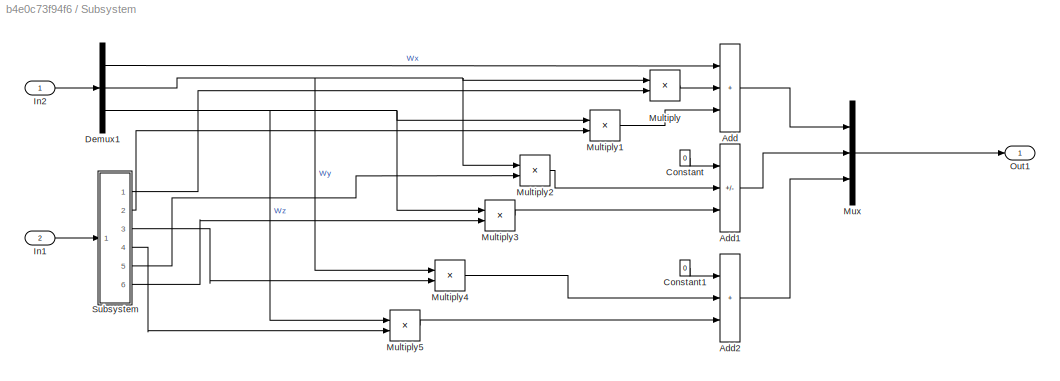
BLOCK [SubSystem] Subsystem
  Commented = on
  Ports = [2, 1]
  RequestExecContextInheritance = off
BLOCK [Sum] Subsystem/Add
  IconShape = rectangular
  Inputs = +++
  Ports = [3, 1]
BLOCK [Sum] Subsystem/Add1
  IconShape = rectangular
  Inputs = ++-
  Ports = [3, 1]
BLOCK [Sum] Subsystem/Add2
  IconShape = rectangular
  Inputs = +++
  Ports = [3, 1]
BLOCK [Constant] Subsystem/Constant
  Value = 0
BLOCK [Constant] Subsystem/Constant1
  Value = 0
BLOCK [Demux] Subsystem/Demux1
  Outputs = 3
  Ports = [1, 3]
BLOCK [Inport] Subsystem/In1
  Port = 2
BLOCK [Inport] Subsystem/In2
BLOCK [Product] Subsystem/Multiply
  Ports = [2, 1]
BLOCK [Product] Subsystem/Multiply1
  Ports = [2, 1]
BLOCK [Product] Subsystem/Multiply2
  Ports = [2, 1]
BLOCK [Product] Subsystem/Multiply3
  Ports = [2, 1]
BLOCK [Product] Subsystem/Multiply4
  Ports = [2, 1]
BLOCK [Product] Subsystem/Multiply5
  Ports = [2, 1]
BLOCK [Mux] Subsystem/Mux
  DisplayOption = bar
  Inputs = 3
  Ports = [3, 1]
BLOCK [Outport] Subsystem/Out1
  VectorParamsAs1DForOutWhenUnconnected = off
BLOCK [SubSystem] Subsystem/Subsystem
  Ports = [1, 6]
  RequestExecContextInheritance = off
BLOCK [Product] Subsystem/Subsystem/Cphi*Ttheta1
  Ports = [2, 1]
BLOCK [Demux] Subsystem/Subsystem/Demux
  Outputs = 3
  Ports = [1, 3]
BLOCK [Product] Subsystem/Subsystem/Divide
  Inputs = */
  Ports = [2, 1]
BLOCK [Product] Subsystem/Subsystem/Divide1
  Inputs = */
  Ports = [2, 1]
BLOCK [Inport] Subsystem/Subsystem/In1
BLOCK [Outport] Subsystem/Subsystem/Out1
  VectorParamsAs1DForOutWhenUnconnected = off
BLOCK [Outport] Subsystem/Subsystem/Out2
  Port = 2
  VectorParamsAs1DForOutWhenUnconnected = off
BLOCK [Outport] Subsystem/Subsystem/Out3
  Port = 3
  VectorParamsAs1DForOutWhenUnconnected = off
BLOCK [Outport] Subsystem/Subsystem/Out4
  Port = 4
  VectorParamsAs1DForOutWhenUnconnected = off
BLOCK [Outport] Subsystem/Subsystem/Out5
  Port = 5
  VectorParamsAs1DForOutWhenUnconnected = off
BLOCK [Outport] Subsystem/Subsystem/Out6
  Port = 6
  VectorParamsAs1DForOutWhenUnconnected = off
BLOCK [Trigonometry] Subsystem/Subsystem/Sin
  Ports = [1, 1]
BLOCK [Trigonometry] Subsystem/Subsystem/Sin1
  Operator = cos
  Ports = [1, 1]
BLOCK [Trigonometry] Subsystem/Subsystem/Sin2
  Operator = tan
  Ports = [1, 1]
BLOCK [Trigonometry] Subsystem/Subsystem/Sin3
  Operator = cos
  Ports = [1, 1]
BLOCK [Product] Subsystem/Subsystem/Sphi*Ttheta
  Ports = [2, 1]
BLOCK [Terminator] Subsystem/Subsystem/Terminator
BLOCK [Sum] Sum1
  Inputs = |+-
  Ports = [2, 1]
BLOCK [Sum] Sum2
  Inputs = |+-
  Ports = [2, 1]
BLOCK [ToWorkspace] To Workspace
  FixptAsFi = on
  MaxDataPoints = inf
  Ports = [1]
  SampleTime = -1
  SaveFormat = Timeseries
  VariableName = simout
BLOCK [ToWorkspace] To Workspace1
  FixptAsFi = on
  MaxDataPoints = inf
  Ports = [1]
  SampleTime = -1
  SaveFormat = Timeseries
  VariableName = simout1
BLOCK [Reference] noise   REF=simulink/Sources/Band-Limited
White Noise
  Ports = [0, 1]
  SourceBlock = simulink/Sources/Band-Limited\nWhite Noise
  SourceProductBaseCode = SL
  SourceType = Band-Limited White Noise.
BLOCK [Reference] noise 2   REF=simulink/Sources/Band-Limited
White Noise
  Ports = [0, 1]
  SourceBlock = simulink/Sources/Band-Limited\nWhite Noise
  SourceProductBaseCode = SL
  SourceType = Band-Limited White Noise.
BLOCK [SubSystem] resonance
  Ports = [1, 1]
  RequestExecContextInheritance = off
BLOCK [Demux] resonance/Demux
  Outputs = 3
  Ports = [1, 3]
BLOCK [Inport] resonance/In1
BLOCK [Mux] resonance/Mux
  DisplayOption = bar
  Inputs = 3
  Ports = [3, 1]
BLOCK [Outport] resonance/Out1
  VectorParamsAs1DForOutWhenUnconnected = off
BLOCK [TransferFcn] resonance/Resonance 
  Denominator = [1 52.77 435249.55]
  Numerator = [1.221 58.24 435033.4]
BLOCK [TransferFcn] resonance/Resonance 1
  Denominator = [1 52.77 435249.55]
  Numerator = [1.221 58.24 435033.4]
BLOCK [TransferFcn] resonance/Resonance 2
  Denominator = [1 52.77 435249.55]
  Numerator = [1.221 58.24 435033.4]
NET Add1:1 -> Scope1:1, Scope5:3, Sum1:2, To Workspace1:1
LINE Add2:1 -> Scope8:1
NET Add:1 -> GYRO rate to count 3:1, Integrator1:1, Scope2:1, Scope4:1, Scope:1
LINE Air bearing subsystem/Add:1 -> Air bearing subsystem/Product3:2
LINE Air bearing subsystem/Cross Product1:1 -> Air bearing subsystem/Add:1
LINE Air bearing subsystem/Cross Product:1 -> Air bearing subsystem/Add:3
LINE Air bearing subsystem/Derivative:1 -> Air bearing subsystem/Product:3
NET Air bearing subsystem/Direction Cosines :1 -> Air bearing subsystem/Product1:1, Air bearing subsystem/Product:1
LINE Air bearing subsystem/Inertia of air bearing:1 -> Air bearing subsystem/Product2:1
LINE Air bearing subsystem/Inertia of reaction wheel inverse:1 -> Air bearing subsystem/Product3:1
NET Air bearing subsystem/Inertia of reaction wheel:1 -> Air bearing subsystem/Product1:2, Air bearing subsystem/Product:2
NET Air bearing subsystem/Integrator:1 -> Air bearing subsystem/Cross Product1:1, Air bearing subsystem/Cross Product:1, Air bearing subsystem/Out1:1, Air bearing subsystem/Product2:2
NET Air bearing subsystem/Omega of reaction wheel co-ordinate frame:1 -> Air bearing subsystem/Derivative:1, Air bearing subsystem/Product1:3
LINE Air bearing subsystem/Product1:1 -> Air bearing subsystem/Cross Product:2
LINE Air bearing subsystem/Product2:1 -> Air bearing subsystem/Cross Product1:2
LINE Air bearing subsystem/Product3:1 -> Air bearing subsystem/Integrator:1
LINE Air bearing subsystem/Product:1 -> Air bearing subsystem/Add:2
LINE Air bearing subsystem:1 -> resonance:1
LINE Band-Limited White Noise1:1 -> Mux:2
LINE Band-Limited White Noise2:1 -> Mux:3
LINE Band-Limited White Noise:1 -> Mux:1
LINE Constant1:1 -> Mux2:1
LINE Constant2:1 -> Mux2:2
LINE Constant3:1 -> Sin:1
LINE Constant7:1 -> Mux2:3
LINE Derivative2:1 -> Sum2:1
LINE GYRO rate to count 3/Add1:1 -> GYRO rate to count 3/Add2:1
NET GYRO rate to count 3/Add2:1 -> GYRO rate to count 3/Count:1, GYRO rate to count 3/Scope:1
LINE GYRO rate to count 3/Band-Limited White Noise1:1 -> GYRO rate to count 3/Add2:2
LINE GYRO rate to count 3/Demux:1 -> GYRO rate to count 3/Gyroscope:1
LINE GYRO rate to count 3/Demux:2 -> GYRO rate to count 3/Gyroscope1:1
LINE GYRO rate to count 3/Demux:3 -> GYRO rate to count 3/Gyroscope2:1
LINE GYRO rate to count 3/Gyroscope1:1 -> GYRO rate to count 3/Mux:2
LINE GYRO rate to count 3/Gyroscope2:1 -> GYRO rate to count 3/Mux:3
LINE GYRO rate to count 3/Gyroscope:1 -> GYRO rate to count 3/Mux:1
LINE GYRO rate to count 3/Mux:1 -> GYRO rate to count 3/Add1:1
LINE GYRO rate to count 3/Real world angular rate:1 -> GYRO rate to count 3/Demux:1
LINE GYRO rate to count 3/Static bias:1 -> GYRO rate to count 3/Add1:2
LINE GYRO rate to count 3:1 -> LPF:1
NET Gain2:1 -> Rection wheels:1, Scope3:1
LINE Gain7:1 -> Gain2:1
LINE Integrator1:1 -> Add1:1
LINE Integrator2:1 -> Add2:2
LINE Integrator:1 -> Subsystem:2
LINE LPF/Demux:1 -> LPF/Subsystem:1
LINE LPF/Demux:2 -> LPF/Subsystem1:1
LINE LPF/Demux:3 -> LPF/Subsystem2:1
LINE LPF/In1:1 -> LPF/Demux:1
LINE LPF/Mux:1 -> LPF/Out1:1
LINE LPF/Subsystem/In1:1 -> LPF/Subsystem/Transfer Fcn:1
LINE LPF/Subsystem/Transfer Fcn1:1 -> LPF/Subsystem/Transfer Fcn2:1
LINE LPF/Subsystem/Transfer Fcn2:1 -> LPF/Subsystem/Transfer Fcn3:1
LINE LPF/Subsystem/Transfer Fcn3:1 -> LPF/Subsystem/Transfer Fcn4:1
LINE LPF/Subsystem/Transfer Fcn4:1 -> LPF/Subsystem/Transfer Fcn5:1
LINE LPF/Subsystem/Transfer Fcn5:1 -> LPF/Subsystem/Transfer Fcn6:1
LINE LPF/Subsystem/Transfer Fcn6:1 -> LPF/Subsystem/Transfer Fcn7:1
LINE LPF/Subsystem/Transfer Fcn7:1 -> LPF/Subsystem/Out1:1
LINE LPF/Subsystem/Transfer Fcn:1 -> LPF/Subsystem/Transfer Fcn1:1
LINE LPF/Subsystem1/In1:1 -> LPF/Subsystem1/Transfer Fcn:1
LINE LPF/Subsystem1/Transfer Fcn1:1 -> LPF/Subsystem1/Transfer Fcn2:1
LINE LPF/Subsystem1/Transfer Fcn2:1 -> LPF/Subsystem1/Transfer Fcn3:1
LINE LPF/Subsystem1/Transfer Fcn3:1 -> LPF/Subsystem1/Transfer Fcn4:1
LINE LPF/Subsystem1/Transfer Fcn4:1 -> LPF/Subsystem1/Transfer Fcn5:1
LINE LPF/Subsystem1/Transfer Fcn5:1 -> LPF/Subsystem1/Transfer Fcn6:1
LINE LPF/Subsystem1/Transfer Fcn6:1 -> LPF/Subsystem1/Transfer Fcn7:1
LINE LPF/Subsystem1/Transfer Fcn7:1 -> LPF/Subsystem1/Out1:1
LINE LPF/Subsystem1/Transfer Fcn:1 -> LPF/Subsystem1/Transfer Fcn1:1
LINE LPF/Subsystem1:1 -> LPF/Mux:2
LINE LPF/Subsystem2/In1:1 -> LPF/Subsystem2/Transfer Fcn:1
LINE LPF/Subsystem2/Transfer Fcn1:1 -> LPF/Subsystem2/Transfer Fcn2:1
LINE LPF/Subsystem2/Transfer Fcn2:1 -> LPF/Subsystem2/Transfer Fcn3:1
LINE LPF/Subsystem2/Transfer Fcn3:1 -> LPF/Subsystem2/Transfer Fcn4:1
LINE LPF/Subsystem2/Transfer Fcn4:1 -> LPF/Subsystem2/Transfer Fcn5:1
LINE LPF/Subsystem2/Transfer Fcn5:1 -> LPF/Subsystem2/Transfer Fcn6:1
LINE LPF/Subsystem2/Transfer Fcn6:1 -> LPF/Subsystem2/Transfer Fcn7:1
LINE LPF/Subsystem2/Transfer Fcn7:1 -> LPF/Subsystem2/Out1:1
LINE LPF/Subsystem2/Transfer Fcn:1 -> LPF/Subsystem2/Transfer Fcn1:1
LINE LPF/Subsystem2:1 -> LPF/Mux:3
LINE LPF/Subsystem:1 -> LPF/Mux:1
LINE LPF:1 -> Saturator:1
LINE Mux2:1 -> Sum1:1
LINE Mux:1 -> Integrator2:1
LINE PID Controller2:1 -> Gain7:1
LINE PID Controller3:1 -> Derivative2:1
LINE Rection wheels/Constant1:1 -> Rection wheels/Simulink-PS Converter3:1
LINE Rection wheels/Constant2:1 -> Rection wheels/Simulink-PS Converter5:1
LINE Rection wheels/Constant:1 -> Rection wheels/Simulink-PS Converter1:1
LINE Rection wheels/Demux:1 -> Rection wheels/Simulink-PS Converter:1
LINE Rection wheels/Demux:2 -> Rection wheels/Simulink-PS Converter2:1
LINE Rection wheels/Demux:3 -> Rection wheels/Simulink-PS Converter4:1
LINE Rection wheels/Input:1 -> Rection wheels/Demux:1
LINE Rection wheels/Mux:1 -> Rection wheels/Out1:1
NET Rection wheels/PS-Simulink Converter1:1 -> Rection wheels/Mux:1, Rection wheels/Scope5:1
LINE Rection wheels/PS-Simulink Converter2:1 -> Rection wheels/Scope3:1
LINE Rection wheels/PS-Simulink Converter3:1 -> Rection wheels/Scope1:1
NET Rection wheels/PS-Simulink Converter4:1 -> Rection wheels/Mux:2, Rection wheels/Scope6:1
LINE Rection wheels/PS-Simulink Converter5:1 -> Rection wheels/Scope4:1
LINE Rection wheels/PS-Simulink Converter6:1 -> Rection wheels/Scope7:1
NET Rection wheels/PS-Simulink Converter7:1 -> Rection wheels/Mux:3, Rection wheels/Scope9:1
LINE Rection wheels/PS-Simulink Converter8:1 -> Rection wheels/Scope8:1
LINE Rection wheels/PS-Simulink Converter:1 -> Rection wheels/Scope2:1
LINE Rection wheels:1 -> Air bearing subsystem:1
NET Saturator:1 -> Scope4:2, Scope5:1, Sum2:2, To Workspace:1
LINE Sin:1 -> Add2:1
NET Sine Wave1:1 -> Add:3, Scope2:2
LINE Subsystem/Add1:1 -> Subsystem/Mux:2
LINE Subsystem/Add2:1 -> Subsystem/Mux:3
LINE Subsystem/Add:1 -> Subsystem/Mux:1
LINE Subsystem/Constant1:1 -> Subsystem/Add2:1
LINE Subsystem/Constant:1 -> Subsystem/Add1:1
LINE Subsystem/Demux1:1 -> Subsystem/Add:1
NET Subsystem/Demux1:2 -> Subsystem/Multiply2:1, Subsystem/Multiply4:1, Subsystem/Multiply:1
NET Subsystem/Demux1:3 -> Subsystem/Multiply1:1, Subsystem/Multiply3:1, Subsystem/Multiply5:1
LINE Subsystem/In1:1 -> Subsystem/Subsystem:1
LINE Subsystem/In2:1 -> Subsystem/Demux1:1
LINE Subsystem/Multiply1:1 -> Subsystem/Add:3
LINE Subsystem/Multiply2:1 -> Subsystem/Add1:2
LINE Subsystem/Multiply3:1 -> Subsystem/Add1:3
LINE Subsystem/Multiply4:1 -> Subsystem/Add2:2
LINE Subsystem/Multiply5:1 -> Subsystem/Add2:3
LINE Subsystem/Multiply:1 -> Subsystem/Add:2
LINE Subsystem/Mux:1 -> Subsystem/Out1:1
LINE Subsystem/Subsystem/Cphi*Ttheta1:1 -> Subsystem/Subsystem/Out2:1
NET Subsystem/Subsystem/Demux:1 -> Subsystem/Subsystem/Sin1:1, Subsystem/Subsystem/Sin:1
NET Subsystem/Subsystem/Demux:2 -> Subsystem/Subsystem/Sin2:1, Subsystem/Subsystem/Sin3:1
LINE Subsystem/Subsystem/Demux:3 -> Subsystem/Subsystem/Terminator:1
LINE Subsystem/Subsystem/Divide1:1 -> Subsystem/Subsystem/Out4:1
LINE Subsystem/Subsystem/Divide:1 -> Subsystem/Subsystem/Out3:1
LINE Subsystem/Subsystem/In1:1 -> Subsystem/Subsystem/Demux:1
NET Subsystem/Subsystem/Sin1:1 -> Subsystem/Subsystem/Cphi*Ttheta1:1, Subsystem/Subsystem/Divide1:1, Subsystem/Subsystem/Out5:1
NET Subsystem/Subsystem/Sin2:1 -> Subsystem/Subsystem/Cphi*Ttheta1:2, Subsystem/Subsystem/Sphi*Ttheta:2
NET Subsystem/Subsystem/Sin3:1 -> Subsystem/Subsystem/Divide1:2, Subsystem/Subsystem/Divide:2
NET Subsystem/Subsystem/Sin:1 -> Subsystem/Subsystem/Divide:1, Subsystem/Subsystem/Out6:1, Subsystem/Subsystem/Sphi*Ttheta:1
LINE Subsystem/Subsystem/Sphi*Ttheta:1 -> Subsystem/Subsystem/Out1:1
LINE Subsystem/Subsystem:1 -> Subsystem/Multiply:2
LINE Subsystem/Subsystem:2 -> Subsystem/Multiply1:2
LINE Subsystem/Subsystem:3 -> Subsystem/Multiply4:2
LINE Subsystem/Subsystem:4 -> Subsystem/Multiply5:2
LINE Subsystem/Subsystem:5 -> Subsystem/Multiply2:2
LINE Subsystem/Subsystem:6 -> Subsystem/Multiply3:2
LINE Subsystem:1 -> Integrator:1
NET Sum1:1 -> PID Controller3:1, Scope7:1
NET Sum2:1 -> PID Controller2:1, Scope6:1
LINE noise 2 :1 -> Add:1
LINE noise :1 -> Add1:2
LINE resonance/Demux:1 -> resonance/Resonance 2:1
LINE resonance/Demux:2 -> resonance/Resonance 1:1
LINE resonance/Demux:3 -> resonance/Resonance :1
LINE resonance/In1:1 -> resonance/Demux:1
LINE resonance/Mux:1 -> resonance/Out1:1
LINE resonance/Resonance 1:1 -> resonance/Mux:2
LINE resonance/Resonance 2:1 -> resonance/Mux:1
LINE resonance/Resonance :1 -> resonance/Mux:3
LINE resonance:1 -> Add:2
PLINE Rection wheels/Controlled Voltage Source1:LConn1 -- Rection wheels/Inductor1:LConn1
PLINE Rection wheels/Controlled Voltage Source1:RConn1 -- Rection wheels/Simulink-PS Converter2:RConn1
PNET net1: Rection wheels/Controlled Voltage Source1:RConn2 -- Rection wheels/Electrical Reference1:LConn1 -- Rection wheels/Rotational Electromechanical Converter1:RConn1 -- Rection wheels/Solver Configuration1:RConn1
PLINE Rection wheels/Controlled Voltage Source2:LConn1 -- Rection wheels/Inductor2:LConn1
PLINE Rection wheels/Controlled Voltage Source2:RConn1 -- Rection wheels/Simulink-PS Converter4:RConn1
PNET net2: Rection wheels/Controlled Voltage Source2:RConn2 -- Rection wheels/Electrical Reference2:LConn1 -- Rection wheels/Rotational Electromechanical Converter2:RConn1 -- Rection wheels/Solver Configuration2:RConn1
PLINE Rection wheels/Controlled Voltage Source:LConn1 -- Rection wheels/Inductor:LConn1
PLINE Rection wheels/Controlled Voltage Source:RConn1 -- Rection wheels/Simulink-PS Converter:RConn1
PNET net3: Rection wheels/Controlled Voltage Source:RConn2 -- Rection wheels/Electrical Reference:LConn1 -- Rection wheels/Rotational Electromechanical Converter:RConn1 -- Rection wheels/Solver Configuration:RConn1
PLINE Rection wheels/Current Sensor1:LConn1 -- Rection wheels/Resistor1:RConn1
PLINE Rection wheels/Current Sensor1:RConn1 -- Rection wheels/PS-Simulink Converter3:LConn1
PLINE Rection wheels/Current Sensor1:RConn2 -- Rection wheels/Rotational Electromechanical Converter1:LConn1
PLINE Rection wheels/Current Sensor2:LConn1 -- Rection wheels/Resistor2:RConn1
PLINE Rection wheels/Current Sensor2:RConn1 -- Rection wheels/PS-Simulink Converter6:LConn1
PLINE Rection wheels/Current Sensor2:RConn2 -- Rection wheels/Rotational Electromechanical Converter2:LConn1
PLINE Rection wheels/Current Sensor:LConn1 -- Rection wheels/Resistor:RConn1
PLINE Rection wheels/Current Sensor:RConn1 -- Rection wheels/PS-Simulink Converter:LConn1
PLINE Rection wheels/Current Sensor:RConn2 -- Rection wheels/Rotational Electromechanical Converter:LConn1
PNET net4: Rection wheels/Ideal Rotational Motion Sensor1:LConn1 -- Rection wheels/Ideal Torque Source1:RConn2 -- Rection wheels/Inertia1:LConn1 -- Rection wheels/Rotational Damper1:LConn1 -- Rection wheels/Rotational Electromechanical Converter1:LConn2 -- Rection wheels/Rotational Friction1:LConn1
PNET net5: Rection wheels/Ideal Rotational Motion Sensor1:RConn1 -- Rection wheels/Ideal Torque Source1:LConn1 -- Rection wheels/Mechanical Rotational Reference1:LConn1 -- Rection wheels/Rotational Damper1:RConn1 -- Rection wheels/Rotational Electromechanical Converter1:RConn2 -- Rection wheels/Rotational Friction1:RConn1
PLINE Rection wheels/Ideal Rotational Motion Sensor1:RConn2 -- Rection wheels/PS-Simulink Converter4:LConn1
PLINE Rection wheels/Ideal Rotational Motion Sensor1:RConn3 -- Rection wheels/PS-Simulink Converter5:LConn1
PNET net6: Rection wheels/Ideal Rotational Motion Sensor2:LConn1 -- Rection wheels/Ideal Torque Source2:RConn2 -- Rection wheels/Inertia2:LConn1 -- Rection wheels/Rotational Damper2:LConn1 -- Rection wheels/Rotational Electromechanical Converter2:LConn2 -- Rection wheels/Rotational Friction2:LConn1
PNET net7: Rection wheels/Ideal Rotational Motion Sensor2:RConn1 -- Rection wheels/Ideal Torque Source2:LConn1 -- Rection wheels/Mechanical Rotational Reference2:LConn1 -- Rection wheels/Rotational Damper2:RConn1 -- Rection wheels/Rotational Electromechanical Converter2:RConn2 -- Rection wheels/Rotational Friction2:RConn1
PLINE Rection wheels/Ideal Rotational Motion Sensor2:RConn2 -- Rection wheels/PS-Simulink Converter7:LConn1
PLINE Rection wheels/Ideal Rotational Motion Sensor2:RConn3 -- Rection wheels/PS-Simulink Converter8:LConn1
PNET net8: Rection wheels/Ideal Rotational Motion Sensor:LConn1 -- Rection wheels/Ideal Torque Source:RConn2 -- Rection wheels/Inertia:LConn1 -- Rection wheels/Rotational Damper:LConn1 -- Rection wheels/Rotational Electromechanical Converter:LConn2 -- Rection wheels/Rotational Friction:LConn1
PNET net9: Rection wheels/Ideal Rotational Motion Sensor:RConn1 -- Rection wheels/Ideal Torque Source:LConn1 -- Rection wheels/Mechanical Rotational Reference:LConn1 -- Rection wheels/Rotational Damper:RConn1 -- Rection wheels/Rotational Electromechanical Converter:RConn2 -- Rection wheels/Rotational Friction:RConn1
PLINE Rection wheels/Ideal Rotational Motion Sensor:RConn2 -- Rection wheels/PS-Simulink Converter1:LConn1
PLINE Rection wheels/Ideal Rotational Motion Sensor:RConn3 -- Rection wheels/PS-Simulink Converter2:LConn1
PLINE Rection wheels/Ideal Torque Source1:RConn1 -- Rection wheels/Simulink-PS Converter3:RConn1
PLINE Rection wheels/Ideal Torque Source2:RConn1 -- Rection wheels/Simulink-PS Converter5:RConn1
PLINE Rection wheels/Ideal Torque Source:RConn1 -- Rection wheels/Simulink-PS Converter1:RConn1
PLINE Rection wheels/Inductor1:RConn1 -- Rection wheels/Resistor1:LConn1
PLINE Rection wheels/Inductor2:RConn1 -- Rection wheels/Resistor2:LConn1
PLINE Rection wheels/Inductor:RConn1 -- Rection wheels/Resistor:LConn1
note: NET lines group one-source signal fan-out (src -> all destinations, sorted); 1:1 wires keep LINE; PNET lines group multi-terminal physical nets as a canonical sorted terminal list (undirected conserving connections); 2-terminal nets keep the pairwise PLINE form
